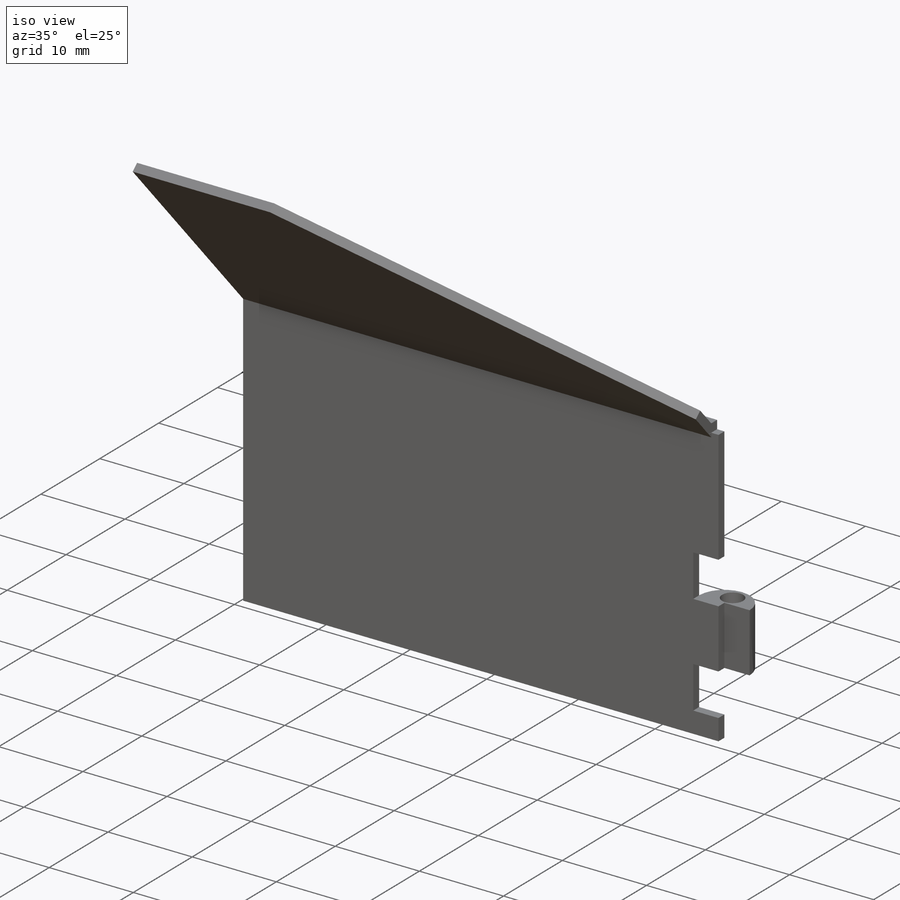
[diagram: iso view]
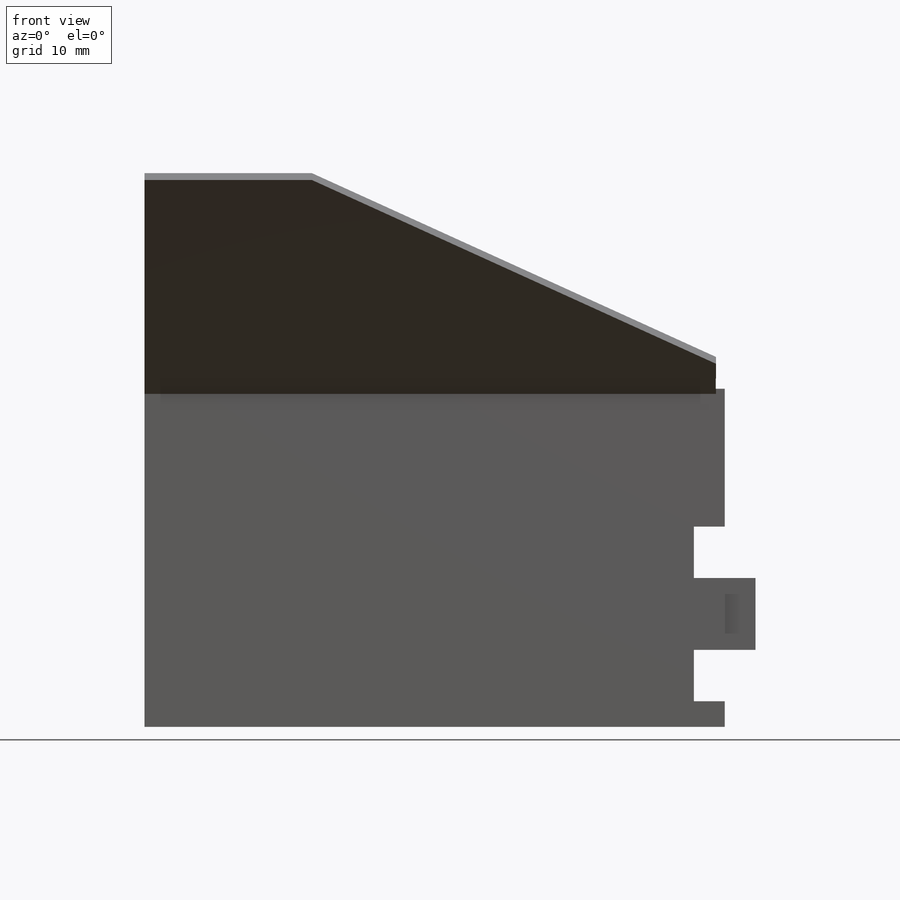
[diagram: front view]
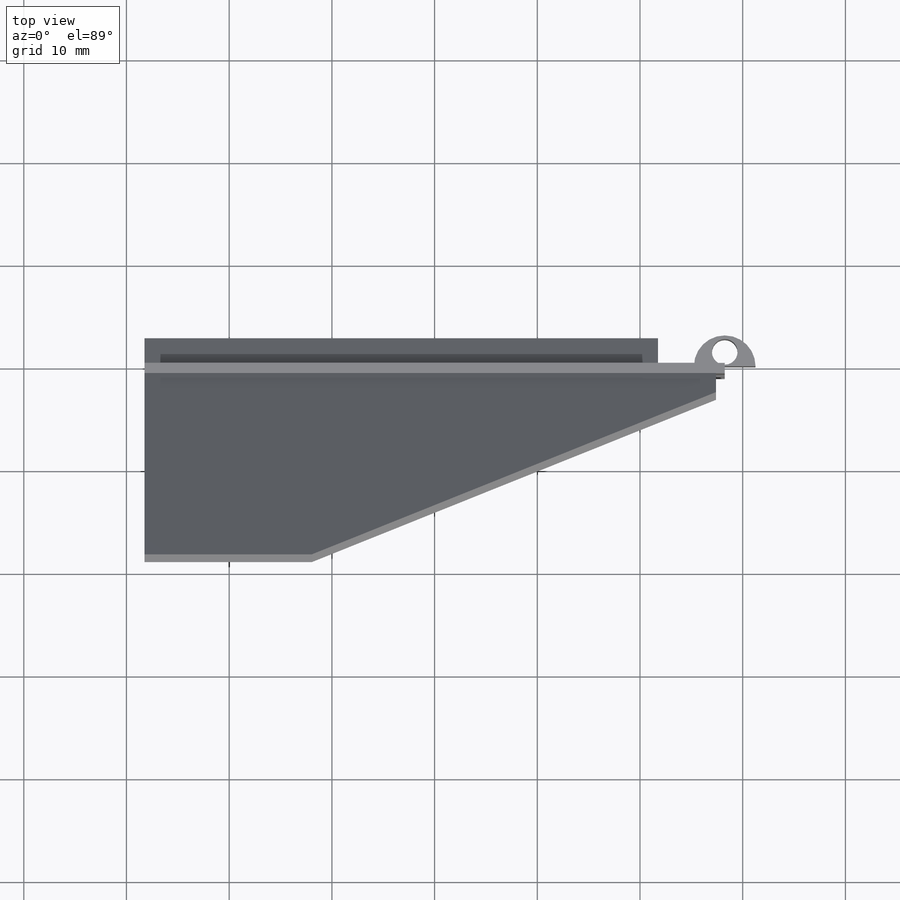
[diagram: top view]
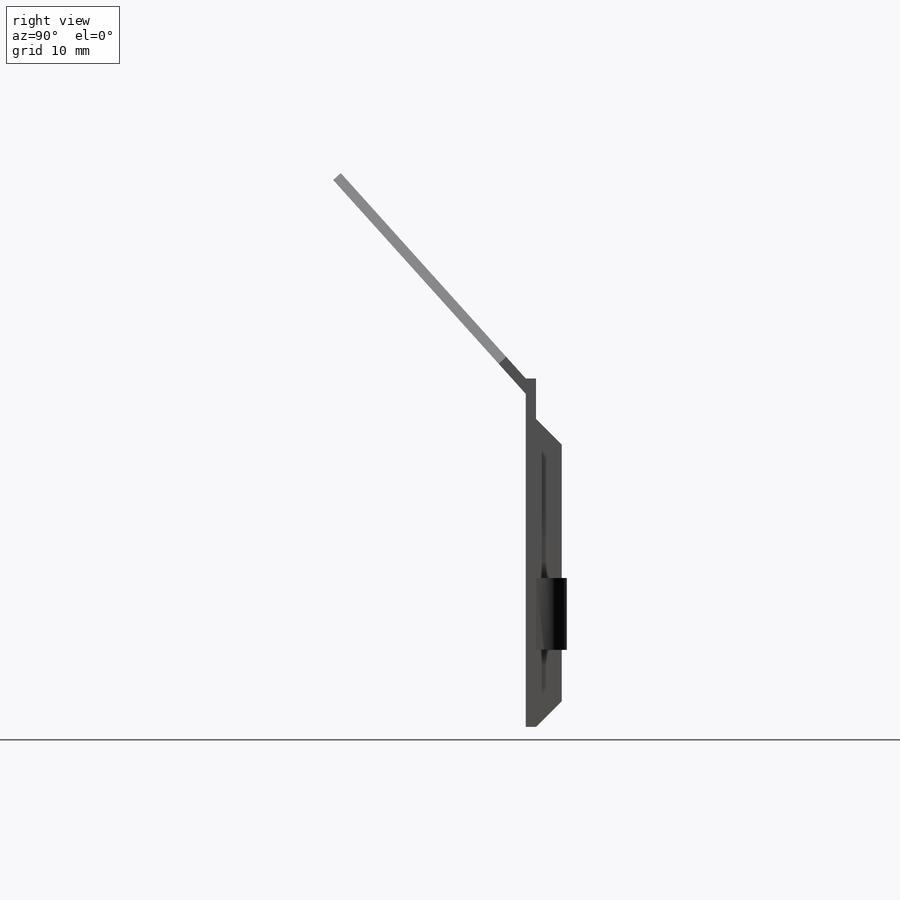
[diagram: right view]
SOLIDWORKS PART (.sldprt)
format: sldprt  version: not decoded by parser v0  size: 311,808 bytes
history: native  units: mm
features: sketch x7, extrude x5, cut_extrude x2, material x1, plane x1 (+13 scaffold rows collapsed)
feature tree (29):
  scaffold x13  (default folders/planes/origin — collapsed)
  material  "Material <not specified>"
  sketch  "Sketch1"  dims[c1.D1=60.0mm c1.D2=28.0mm c1.D3=33.12mm c1.D4=6.19mm c1.D5=2.0mm c1.D6=25.16mm c2.D1=56.5mm c2.D7=5.0mm c2.D8=7.0mm c2.D9=2.83mm c3.D7=2.5mm c3.D8=5.0mm c3.D9=7.0mm c3.D10=3.0mm c3.D11=2.83mm c3.D3=33.12mm c3.D5=2.0mm c3.D2=33.92mm c4.D3=56.5mm]
  extrude  "Boss-Extrude1"  Depth=1mm
  sketch  "Sketch2"  dims[c1.D1=3.0mm c1.D2=3.0mm c2.D1=3.0mm]
  sketch  "Sketch4"  dims[c1.D1=~1.778942mm c2.D1=135.0deg c2.D2=2.5mm c2.D3=25.0mm c3.D2=25.0mm c3.D3=2.5mm]
  extrude  "Boss-Extrude3"  Depth=50mm
  extrude  "Boss-Extrude6"  [1 undecoded]
  sketch  "Sketch8"  dims[D1=2.5mm D2=1.4mm]
  cut_extrude  "Cut-Extrude3"  [1 undecoded]
  plane  "Plane1"
  sketch  "Sketch5"  dims[c1.D1=16.47mm c1.D2=27.58mm c1.D3=3.5mm c1.D4=0.85mm c2.D1=16.3mm c2.D2=27.58mm c2.D3=3.5mm c3.D2=27.58mm c3.D3=3.5mm]
  extrude  "Boss-Extrude4"  Depth=1mm
  sketch  "Sketch6"  dims[D1=0.0mm]
  extrude  "Boss-Extrude5"  [1 undecoded]
  sketch  "Sketch7"  dims[D1=0.87mm D2=1.0mm]
  cut_extrude  "Cut-Extrude2"  [1 undecoded]
decode coverage: 10 of 14 modeling features carry decoded parameters
note: ~ marks probable driven/reference dimensions
note: 4 parameter values undecoded
summary: no parameter record found for 4 features
note: suppression state not decoded; provenance and decode notes live in map.json
